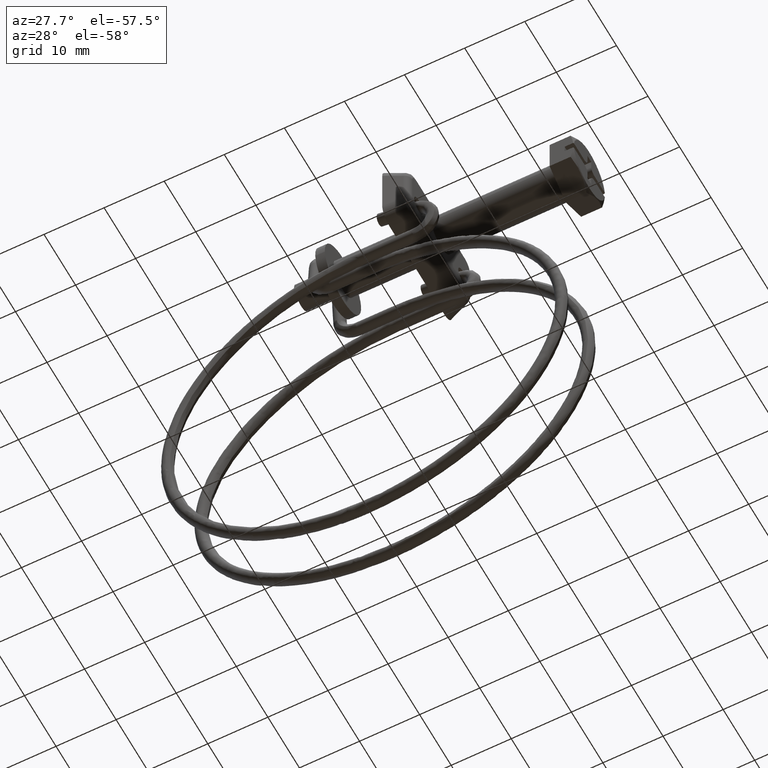
[diagram: clean part render]
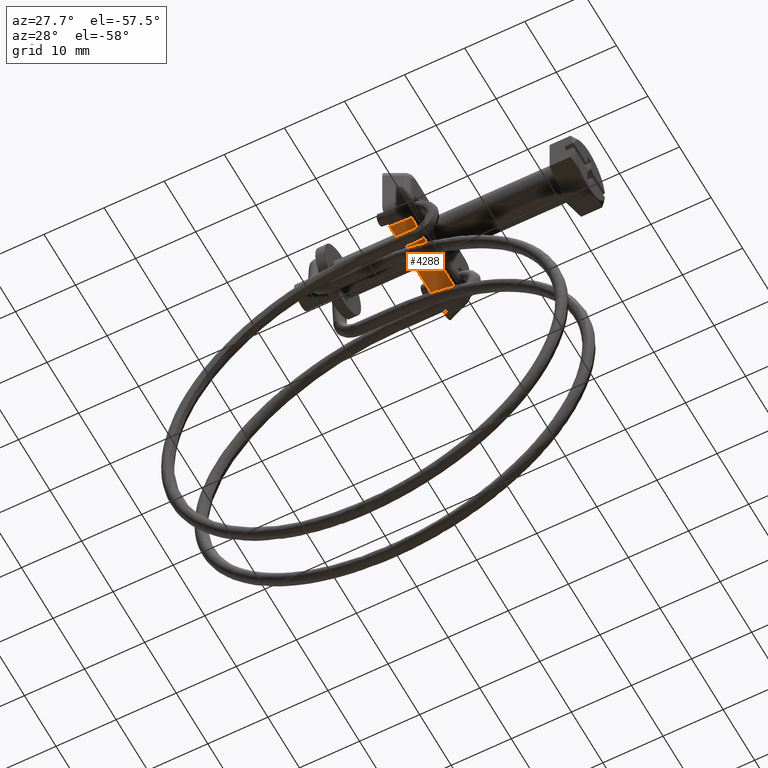
[diagram: same view with one face highlighted and labeled with its STEP entity id]
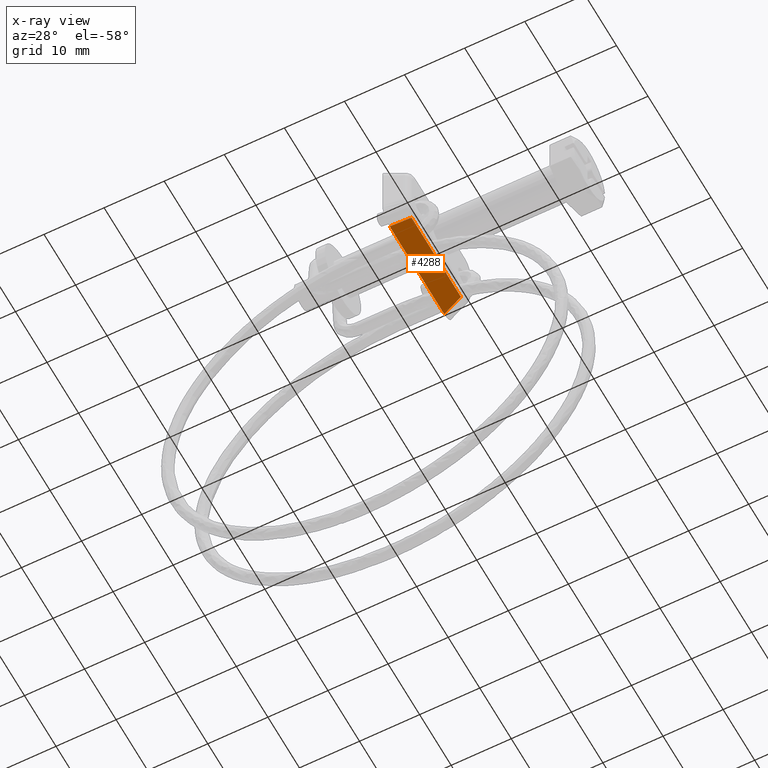
[diagram: x-ray of the same camera — body ghosted, the highlighted face saturated]
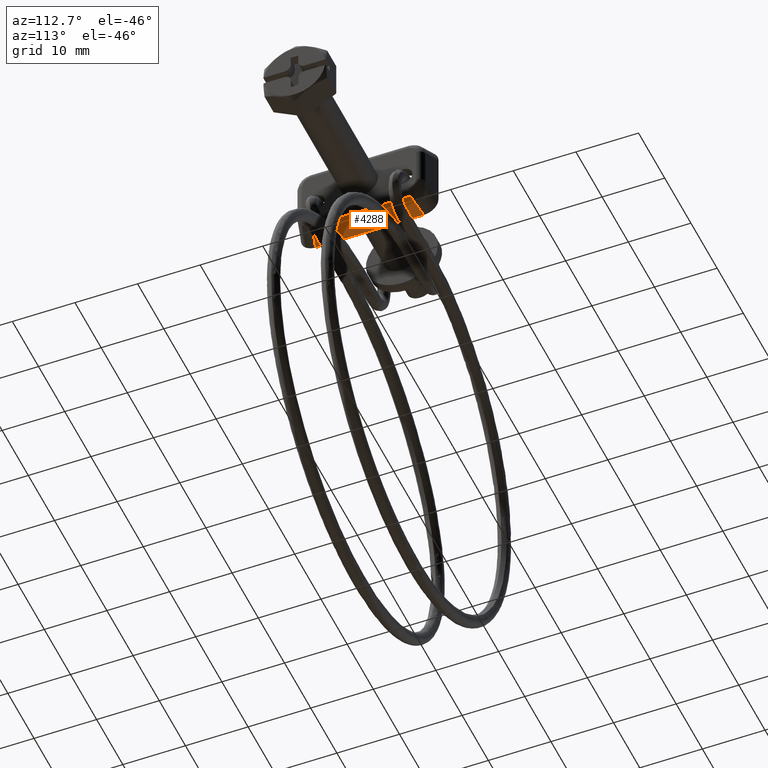
[diagram: same view with one face highlighted and labeled with its STEP entity id]
A machine part, auxiliary view. The second image highlights one B-rep face of the part: STEP entity #4288.
The next image is the same camera in x-ray: the body ghosted, the highlighted face saturated — about 0% of this face is hidden behind the body in this view.
A second angle (auxiliary view) of the same face is appended — the face is thin or edge-on in the first view.
In plain terms, the highlighted face is a freeform B-spline surface patch.
Its self-contained STEP definition (entity closure, byte-faithful):
#3257=CARTESIAN_POINT('',(-35.478652022990950,7.837173833659421,-5.291995008621631));
#3258=VERTEX_POINT('',#3257);
#3379=CARTESIAN_POINT('',(-35.478652022990900,-7.837173833659261,-5.291995008621610));
#3380=VERTEX_POINT('',#3379);
#3394=CARTESIAN_POINT('',(-35.478652022990950,7.837173833659421,-5.291995008621631));
#3395=CARTESIAN_POINT('',(-35.478652022990900,-7.837173833659261,-5.291995008621610));
#3396=QUASI_UNIFORM_CURVE('',1,(#3394,#3395),.UNSPECIFIED.,.F.,.U.);
#3397=EDGE_CURVE('',#3258,#3380,#3396,.T.);
#3996=CARTESIAN_POINT('',(-38.700000000000003,-8.642511076278339,-6.500000000000000));
#3997=VERTEX_POINT('',#3996);
#3998=CARTESIAN_POINT('',(-35.478652022990900,-7.837173833659261,-5.291995008621610));
#3999=CARTESIAN_POINT('',(-38.700000000000003,-8.642511076278339,-6.500000000000000));
#4000=QUASI_UNIFORM_CURVE('',1,(#3998,#3999),.UNSPECIFIED.,.F.,.U.);
#4001=EDGE_CURVE('',#3380,#3997,#4000,.T.);
#4049=CARTESIAN_POINT('',(-38.700000000000003,8.642511076278229,-6.500000000000000));
#4050=VERTEX_POINT('',#4049);
#4051=CARTESIAN_POINT('',(-38.700000000000003,8.642511076278229,-6.500000000000000));
#4052=CARTESIAN_POINT('',(-35.478652022990950,7.837173833659421,-5.291995008621631));
#4053=QUASI_UNIFORM_CURVE('',1,(#4051,#4052),.UNSPECIFIED.,.F.,.U.);
#4054=EDGE_CURVE('',#4050,#3258,#4053,.T.);
#4256=CARTESIAN_POINT('',(-38.700000000000003,-8.642511076278339,-6.500000000000000));
#4257=CARTESIAN_POINT('',(-38.700000000000003,8.642511076278229,-6.500000000000000));
#4258=QUASI_UNIFORM_CURVE('',1,(#4256,#4257),.UNSPECIFIED.,.F.,.U.);
#4259=EDGE_CURVE('',#3997,#4050,#4258,.T.);
#4277=CARTESIAN_POINT('',(-35.317746509968032,-9.505898223815652,-5.231655466212872));
#4278=CARTESIAN_POINT('',(-38.860907097083107,-9.505898223815652,-6.560340136431056));
#4279=CARTESIAN_POINT('',(-35.317746509968032,9.505898378355683,-5.231655466212872));
#4280=CARTESIAN_POINT('',(-38.860907097083107,9.505898378355683,-6.560340136431056));
#4281=B_SPLINE_SURFACE_WITH_KNOTS('',1,1,((#4277,#4279),(#4278,#4280)),.UNSPECIFIED.,.F.,.F.,.U.,(2,2),(2,2),(0.0,3.784096972721299),(0.0,19.011796602171341),.UNSPECIFIED.);
#4282=ORIENTED_EDGE('',*,*,#4054,.T.);
#4283=ORIENTED_EDGE('',*,*,#3397,.T.);
#4284=ORIENTED_EDGE('',*,*,#4001,.T.);
#4285=ORIENTED_EDGE('',*,*,#4259,.T.);
#4286=EDGE_LOOP('',(#4282,#4283,#4284,#4285));
#4287=FACE_OUTER_BOUND('',#4286,.T.);
#4288=ADVANCED_FACE('',(#4287),#4281,.T.);